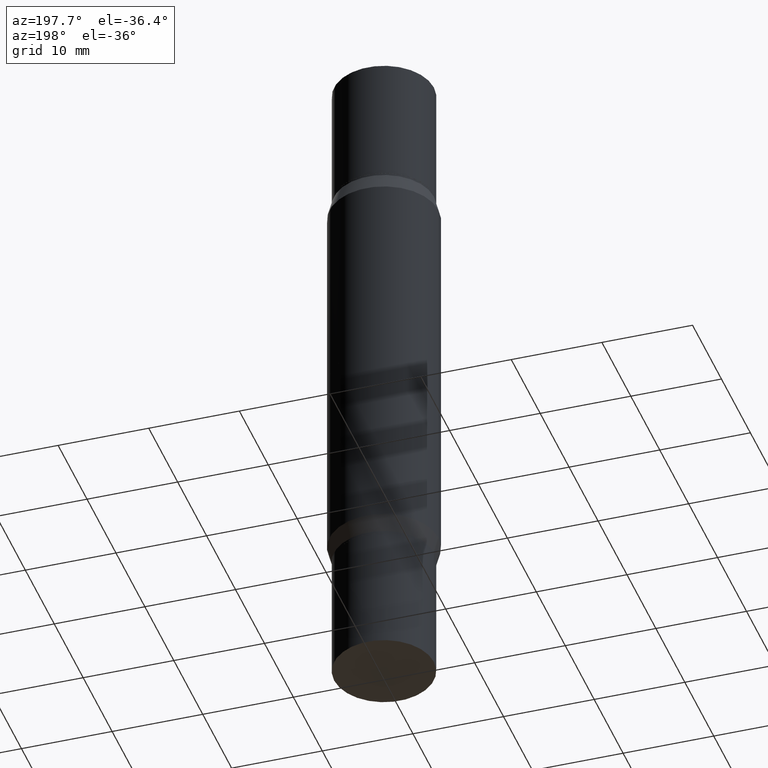
[diagram: clean part render]
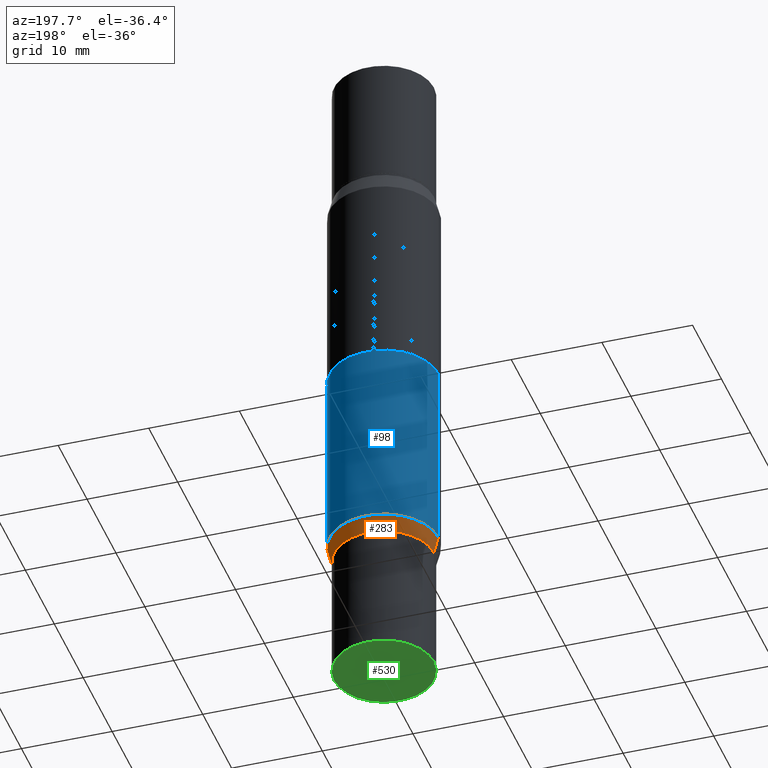
[diagram: same view with three faces highlighted in distinct colors, each labeled with its STEP entity id]
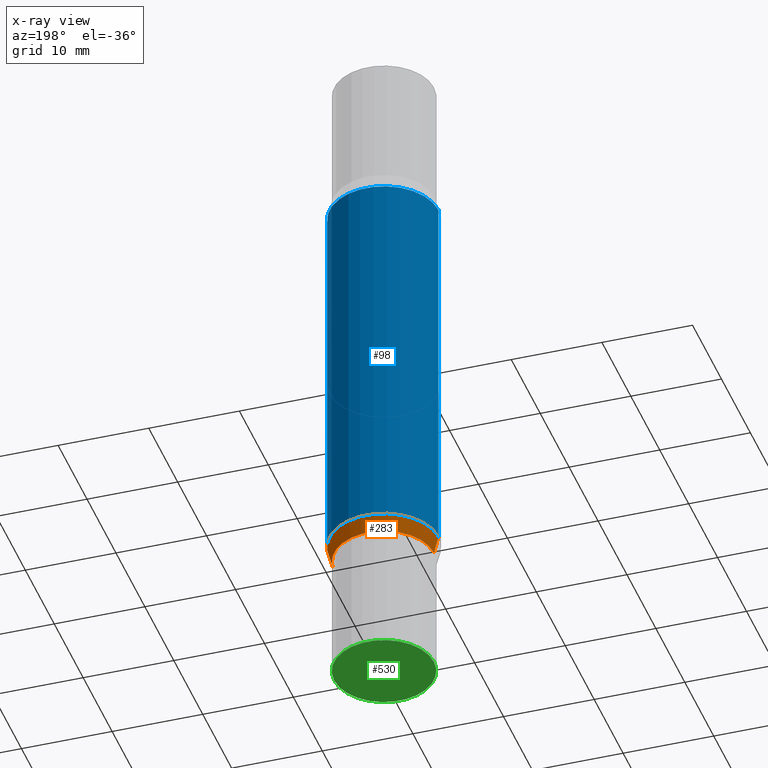
[diagram: x-ray of the same camera — body ghosted, the three highlighted faces saturated]
A machine part, auxiliary view with three faces highlighted in distinct colors.
The next image is the same camera in x-ray (body ghosted, the three faces saturated) — at least one of them is partly hidden behind the body in this view.
Their STEP definitions:

[orange] entity #283 — the highlighted conical surface has half-angle 15 deg.
#7 = LINE ( 'NONE', #695, #309 ) ;
#17 = VERTEX_POINT ( 'NONE', #371 ) ;
#68 = ORIENTED_EDGE ( 'NONE', *, *, #523, .T. ) ;
#105 = VERTEX_POINT ( 'NONE', #452 ) ;
#194 = DIRECTION ( 'NONE',  ( -2.445468806185136597E-29, 3.491481338843145583E-15, 1.000000000000000000 ) ) ;
#275 = VECTOR ( 'NONE', #852, 39.37007874015748854 ) ;
#283 = ADVANCED_FACE ( 'NONE', ( #870 ), #502, .T. ) ;
#309 = VECTOR ( 'NONE', #848, 39.37007874015748854 ) ;
#345 = EDGE_CURVE ( 'NONE', #105, #17, #701, .T. ) ;
#371 = CARTESIAN_POINT ( 'NONE',  ( -0.2165499999999999647, -6.828131012048273985E-15, -2.391599999999999504 ) ) ;
#388 = EDGE_LOOP ( 'NONE', ( #953, #68, #486, #564 ) ) ;
#401 = DIRECTION ( 'NONE',  ( -2.445468806185136597E-29, 3.491481338843145583E-15, 1.000000000000000000 ) ) ;
#408 = DIRECTION ( 'NONE',  ( 1.000000000000000000, -6.982962677686265133E-15, 0.000000000000000000 ) ) ;
#440 = DIRECTION ( 'NONE',  ( -2.445468806185136597E-29, 3.491481338843145583E-15, 1.000000000000000000 ) ) ;
#452 = CARTESIAN_POINT ( 'NONE',  ( 0.2165499999999999647, -9.862387337830228014E-15, -2.391599999999999504 ) ) ;
#459 = EDGE_CURVE ( 'NONE', #105, #938, #7, .T. ) ;
#486 = ORIENTED_EDGE ( 'NONE', *, *, #669, .F. ) ;
#487 = AXIS2_PLACEMENT_3D ( 'NONE', #731, #440, #735 ) ;
#502 = CONICAL_SURFACE ( 'NONE', #784, 0.2165499999999999647, 0.2617993877991491303 ) ;
#523 = EDGE_CURVE ( 'NONE', #17, #607, #710, .T. ) ;
#547 = CARTESIAN_POINT ( 'NONE',  ( -0.2165499999999999647, -6.811546475688768518E-15, -2.391599999999999504 ) ) ;
#564 = ORIENTED_EDGE ( 'NONE', *, *, #459, .F. ) ;
#569 = CARTESIAN_POINT ( 'NONE',  ( -0.2361999999999999933, -3.534373421594383791E-15, -2.318265201631271033 ) ) ;
#607 = VERTEX_POINT ( 'NONE', #569 ) ;
#669 = EDGE_CURVE ( 'NONE', #938, #607, #821, .T. ) ;
#695 = CARTESIAN_POINT ( 'NONE',  ( 0.2165499999999999647, -9.862387337830228014E-15, -2.391599999999999504 ) ) ;
#700 = CARTESIAN_POINT ( 'NONE',  ( 0.2361999999999999933, -9.743555474454520958E-15, -2.318265201631271033 ) ) ;
#701 = CIRCLE ( 'NONE', #487, 0.2165499999999999647 ) ;
#710 = LINE ( 'NONE', #547, #275 ) ;
#731 = CARTESIAN_POINT ( 'NONE',  ( 5.848583196872371682E-29, -8.350226769977265614E-15, -2.391599999999999504 ) ) ;
#735 = DIRECTION ( 'NONE',  ( 1.000000000000000000, -6.982962677686270655E-15, 0.000000000000000000 ) ) ;
#784 = AXIS2_PLACEMENT_3D ( 'NONE', #876, #194, #818 ) ;
#818 = DIRECTION ( 'NONE',  ( 1.000000000000000000, -6.982962677686270655E-15, 0.000000000000000000 ) ) ;
#821 = CIRCLE ( 'NONE', #931, 0.2361999999999999933 ) ;
#848 = DIRECTION ( 'NONE',  ( 0.2588190451025204619, 1.565188264969629067E-15, 0.9659258262890684232 ) ) ;
#852 = DIRECTION ( 'NONE',  ( -0.2588190451025204619, 5.211531920934543942E-15, 0.9659258262890684232 ) ) ;
#870 = FACE_OUTER_BOUND ( 'NONE', #388, .T. ) ;
#876 = CARTESIAN_POINT ( 'NONE',  ( 5.848583196872371682E-29, -8.350226769977265614E-15, -2.391599999999999504 ) ) ;
#917 = CARTESIAN_POINT ( 'NONE',  ( 5.669245235053768865E-29, -8.094179689985024433E-15, -2.318265201631271033 ) ) ;
#931 = AXIS2_PLACEMENT_3D ( 'NONE', #917, #401, #408 ) ;
#938 = VERTEX_POINT ( 'NONE', #700 ) ;
#953 = ORIENTED_EDGE ( 'NONE', *, *, #345, .T. ) ;

[blue] entity #98 — the highlighted cylindrical surface (partial cylindrical patch) has radius 5.9995 mm, axis along (-0, -0, -1).
#15 = DIRECTION ( 'NONE',  ( 2.445468806185136597E-29, 3.491805094961124077E-15, 1.000000000000000000 ) ) ;
#51 = EDGE_CURVE ( 'NONE', #749, #938, #825, .T. ) ;
#58 = CARTESIAN_POINT ( 'NONE',  ( 0.2361999999999999933, -1.195949987533811801E-14, -2.952799999999998981 ) ) ;
#63 = ORIENTED_EDGE ( 'NONE', *, *, #669, .T. ) ;
#98 = ADVANCED_FACE ( 'NONE', ( #292 ), #894, .T. ) ;
#106 = EDGE_CURVE ( 'NONE', #869, #607, #582, .T. ) ;
#132 = CIRCLE ( 'NONE', #182, 0.2361999999999999933 ) ;
#137 = VECTOR ( 'NONE', #224, 39.37007874015748143 ) ;
#148 = EDGE_LOOP ( 'NONE', ( #877, #732, #742, #63 ) ) ;
#182 = AXIS2_PLACEMENT_3D ( 'NONE', #318, #15, #617 ) ;
#224 = DIRECTION ( 'NONE',  ( -2.445468806185136877E-29, -3.491805094961123683E-15, -1.000000000000000000 ) ) ;
#227 = EDGE_CURVE ( 'NONE', #749, #869, #132, .T. ) ;
#233 = CARTESIAN_POINT ( 'NONE',  ( -0.2361999999999999933, -8.689674463794984831E-15, -2.952799999999998981 ) ) ;
#292 = FACE_OUTER_BOUND ( 'NONE', #148, .T. ) ;
#318 = CARTESIAN_POINT ( 'NONE',  ( 5.669245235053768865E-29, -2.215193848341470539E-15, -0.6345347983687280591 ) ) ;
#331 = VECTOR ( 'NONE', #389, 39.37007874015748143 ) ;
#389 = DIRECTION ( 'NONE',  ( -2.445468806185136877E-29, -3.491805094961123683E-15, -1.000000000000000000 ) ) ;
#396 = AXIS2_PLACEMENT_3D ( 'NONE', #524, #673, #906 ) ;
#401 = DIRECTION ( 'NONE',  ( -2.445468806185136597E-29, 3.491481338843145583E-15, 1.000000000000000000 ) ) ;
#408 = DIRECTION ( 'NONE',  ( 1.000000000000000000, -6.982962677686265133E-15, 0.000000000000000000 ) ) ;
#524 = CARTESIAN_POINT ( 'NONE',  ( 0.000000000000000000, -1.031012409086862149E-14, -2.952799999999998981 ) ) ;
#569 = CARTESIAN_POINT ( 'NONE',  ( -0.2361999999999999933, -3.534373421594383791E-15, -2.318265201631271033 ) ) ;
#582 = LINE ( 'NONE', #233, #331 ) ;
#607 = VERTEX_POINT ( 'NONE', #569 ) ;
#617 = DIRECTION ( 'NONE',  ( 1.000000000000000000, -6.982962677686266711E-15, 0.000000000000000000 ) ) ;
#669 = EDGE_CURVE ( 'NONE', #938, #607, #821, .T. ) ;
#673 = DIRECTION ( 'NONE',  ( -2.445468806185136597E-29, -3.491805094961124077E-15, -1.000000000000000000 ) ) ;
#700 = CARTESIAN_POINT ( 'NONE',  ( 0.2361999999999999933, -9.743555474454520958E-15, -2.318265201631271033 ) ) ;
#732 = ORIENTED_EDGE ( 'NONE', *, *, #227, .F. ) ;
#742 = ORIENTED_EDGE ( 'NONE', *, *, #51, .T. ) ;
#749 = VERTEX_POINT ( 'NONE', #778 ) ;
#778 = CARTESIAN_POINT ( 'NONE',  ( 0.2361999999999999933, -3.864569632810967459E-15, -0.6345347983687280591 ) ) ;
#821 = CIRCLE ( 'NONE', #931, 0.2361999999999999933 ) ;
#825 = LINE ( 'NONE', #58, #137 ) ;
#827 = CARTESIAN_POINT ( 'NONE',  ( -0.2361999999999999933, -5.947442212678356578E-16, -0.6345347983687280591 ) ) ;
#869 = VERTEX_POINT ( 'NONE', #827 ) ;
#877 = ORIENTED_EDGE ( 'NONE', *, *, #106, .F. ) ;
#894 = CYLINDRICAL_SURFACE ( 'NONE', #396, 0.2361999999999999933 ) ;
#906 = DIRECTION ( 'NONE',  ( 1.000000000000000000, -6.982962677686265133E-15, 0.000000000000000000 ) ) ;
#917 = CARTESIAN_POINT ( 'NONE',  ( 5.669245235053768865E-29, -8.094179689985024433E-15, -2.318265201631271033 ) ) ;
#931 = AXIS2_PLACEMENT_3D ( 'NONE', #917, #401, #408 ) ;
#938 = VERTEX_POINT ( 'NONE', #700 ) ;

[green] entity #530 — the highlighted planar face has unit normal (-0, 0, 1).
#11 = DIRECTION ( 'NONE',  ( -2.445468806185136597E-29, 3.491481338843145583E-15, 1.000000000000000000 ) ) ;
#13 = AXIS2_PLACEMENT_3D ( 'NONE', #793, #11, #257 ) ;
#34 = ORIENTED_EDGE ( 'NONE', *, *, #463, .F. ) ;
#79 = CIRCLE ( 'NONE', #13, 0.2165500000000000758 ) ;
#160 = DIRECTION ( 'NONE',  ( 1.000000000000000000, -6.982962677686261977E-15, 0.000000000000000000 ) ) ;
#181 = EDGE_CURVE ( 'NONE', #806, #932, #767, .T. ) ;
#257 = DIRECTION ( 'NONE',  ( 1.000000000000000000, -6.982962677686261977E-15, 0.000000000000000000 ) ) ;
#326 = EDGE_LOOP ( 'NONE', ( #34, #656 ) ) ;
#410 = DIRECTION ( 'NONE',  ( -2.445468806185136597E-29, 3.491481338843145583E-15, 1.000000000000000000 ) ) ;
#411 = PLANE ( 'NONE',  #736 ) ;
#463 = EDGE_CURVE ( 'NONE', #932, #806, #79, .T. ) ;
#530 = ADVANCED_FACE ( 'NONE', ( #923 ), #411, .F. ) ;
#556 = DIRECTION ( 'NONE',  ( 1.000000000000000000, -6.982962677686265922E-15, 4.876176775795935793E-29 ) ) ;
#613 = DIRECTION ( 'NONE',  ( -2.438088387897960049E-29, 3.491481338843145188E-15, 1.000000000000000000 ) ) ;
#656 = ORIENTED_EDGE ( 'NONE', *, *, #181, .F. ) ;
#736 = AXIS2_PLACEMENT_3D ( 'NONE', #771, #613, #556 ) ;
#767 = CIRCLE ( 'NONE', #979, 0.2165500000000000758 ) ;
#771 = CARTESIAN_POINT ( 'NONE',  ( 7.273937522778347805E-29, -1.023380832715276122E-14, -2.952799999999999869 ) ) ;
#793 = CARTESIAN_POINT ( 'NONE',  ( 7.220980290903470182E-29, -1.030964609733603853E-14, -2.952799999999999869 ) ) ;
#806 = VERTEX_POINT ( 'NONE', #925 ) ;
#841 = CARTESIAN_POINT ( 'NONE',  ( 7.220980290903470182E-29, -1.030964609733603853E-14, -2.952799999999999869 ) ) ;
#853 = CARTESIAN_POINT ( 'NONE',  ( 0.2165500000000000758, -1.182180666518899935E-14, -2.952799999999999869 ) ) ;
#923 = FACE_OUTER_BOUND ( 'NONE', #326, .T. ) ;
#925 = CARTESIAN_POINT ( 'NONE',  ( -0.2165500000000000758, -7.808713546062369221E-15, -2.952799999999999869 ) ) ;
#932 = VERTEX_POINT ( 'NONE', #853 ) ;
#979 = AXIS2_PLACEMENT_3D ( 'NONE', #841, #410, #160 ) ;